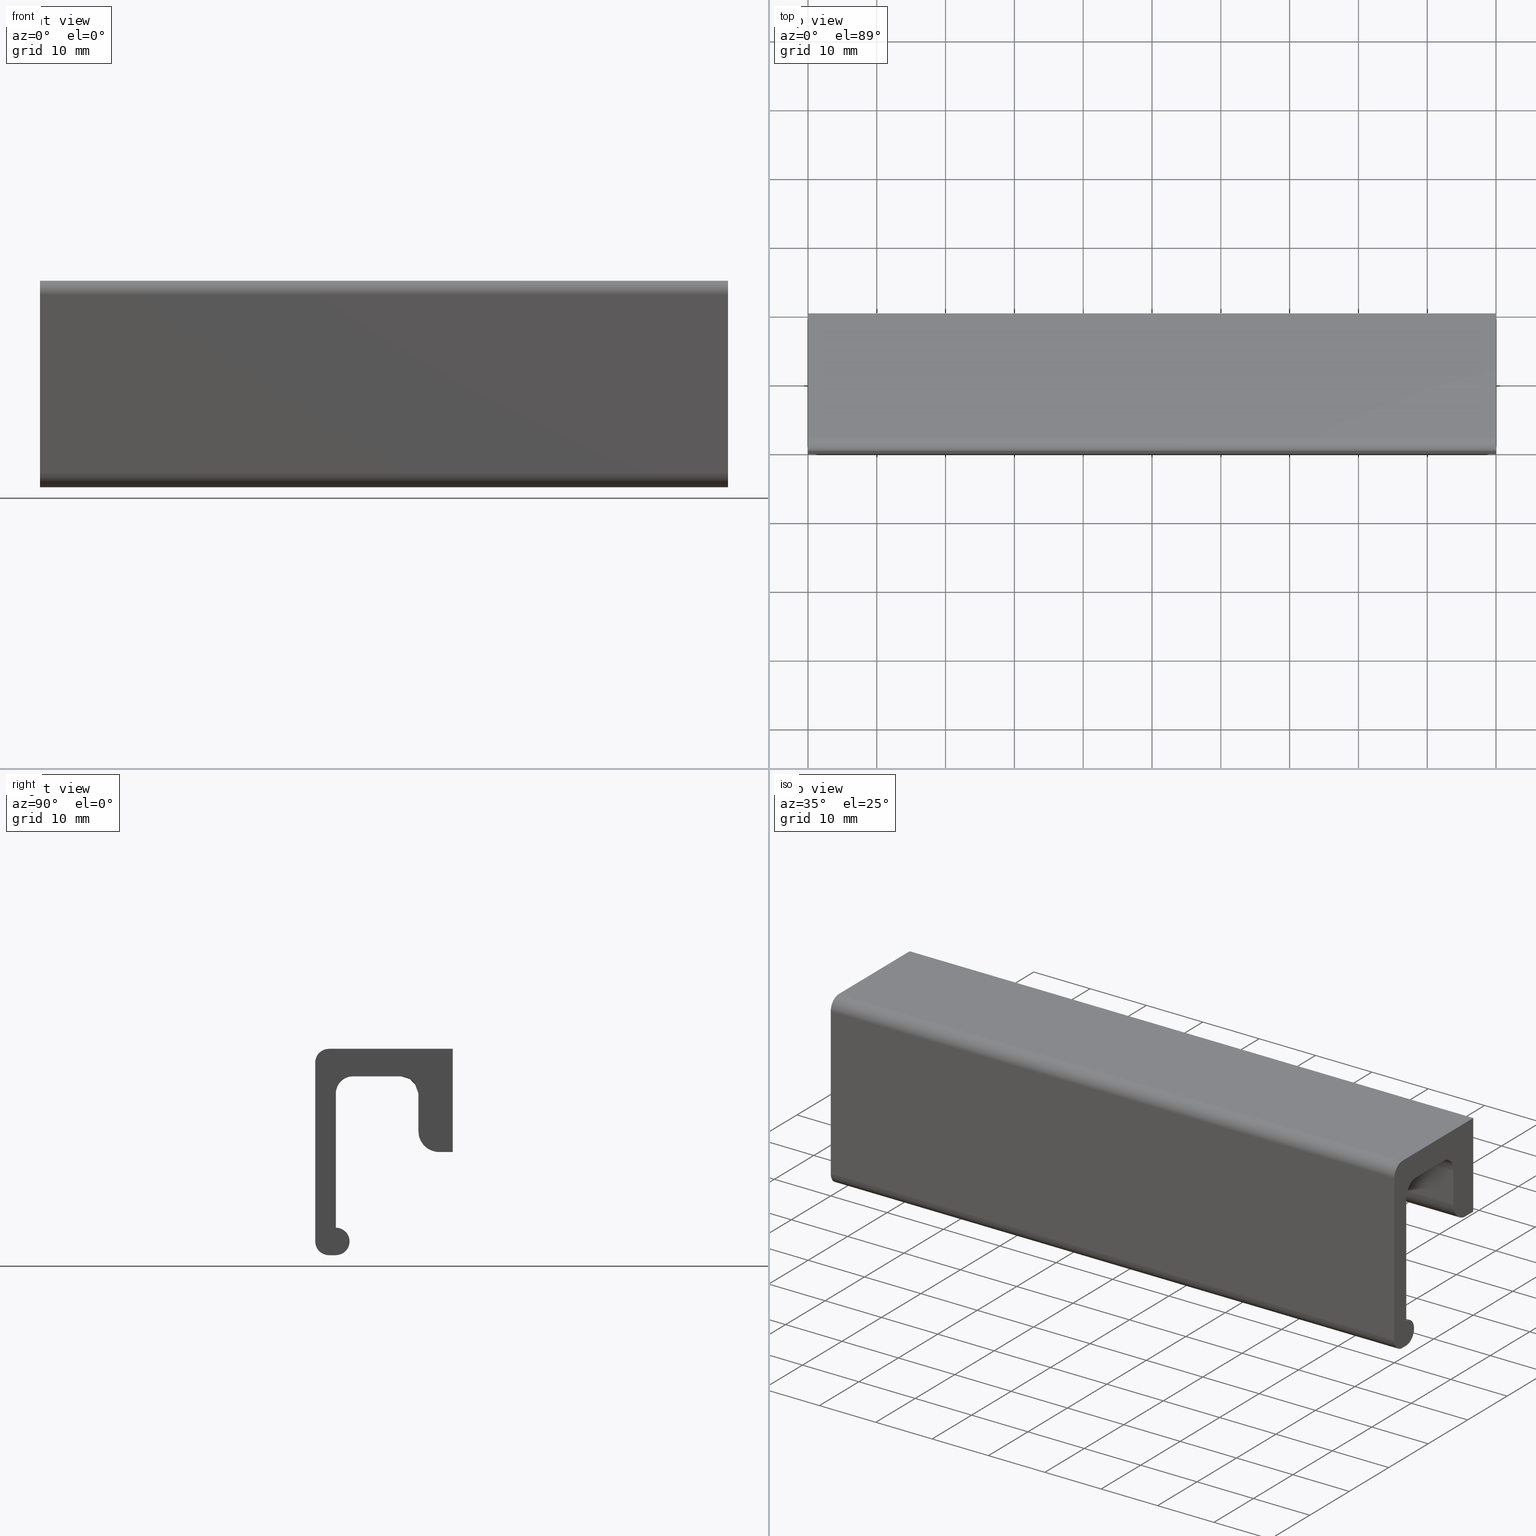
[diagram: canonical four-view strip — front | top / right | iso, engineering-drawing reading convention]
A machine part, canonical four-view strip (front | top / right | iso — engineering-drawing reading convention). The complete STEP part file that produces these views, byte-faithful:
ISO-10303-21;
HEADER;
/****************************************************************
 * Generated by software with PDE/Lib inside                    *
 * PDElib Version 4.4.1-0003, patched  Thursday August 19 11:58 *
 * International Technegroup Inc. (www.iti-oh.com)              *
 ****************************************************************/
FILE_DESCRIPTION((''),'2;1');
FILE_NAME('','2005-10-12T14:42:58',(''),(''),'','CADfix','');
FILE_SCHEMA(('AUTOMOTIVE_DESIGN'));
ENDSEC;
DATA;
#5=APPLICATION_CONTEXT('automotive design');
#6=APPLICATION_PROTOCOL_DEFINITION('Draft International Standard','automotive_design',1998,#5);
#7=PRODUCT_CONTEXT('None',#5,'mechanical');
#8=PRODUCT('pull','','None',(#7));
#9=PRODUCT_RELATED_PRODUCT_CATEGORY('part','description',(#8));
#10=PRODUCT_DEFINITION_FORMATION('None','None',#8);
#11=PRODUCT_DEFINITION_CONTEXT('part definition',#5,'design');
#12=PRODUCT_DEFINITION('None','None',#10,#11);
#18=(NAMED_UNIT(*)PLANE_ANGLE_UNIT()SI_UNIT($,.RADIAN.));
#19=DIMENSIONAL_EXPONENTS(0.0,0.0,0.0,0.0,0.0,0.0,0.0);
#20=PLANE_ANGLE_MEASURE_WITH_UNIT(PLANE_ANGLE_MEASURE(0.017453292500000),#18);
#24=(CONVERSION_BASED_UNIT('DEGREE',#20)NAMED_UNIT(#19)PLANE_ANGLE_UNIT());
#28=(NAMED_UNIT(*)SI_UNIT($,.STERADIAN.)SOLID_ANGLE_UNIT());
#32=(LENGTH_UNIT()NAMED_UNIT(*)SI_UNIT(.MILLI.,.METRE.));
#34=UNCERTAINTY_MEASURE_WITH_UNIT(LENGTH_MEASURE(0.001000000000000),#32,'DISTANCE_ACCURACY_VALUE','');
#36=(GEOMETRIC_REPRESENTATION_CONTEXT(3)GLOBAL_UNCERTAINTY_ASSIGNED_CONTEXT((#34))GLOBAL_UNIT_ASSIGNED_CONTEXT((#24,#28,#32))REPRESENTATION_CONTEXT('None','None'));
#37=AXIS2_PLACEMENT_3D('',#38,#39,#40);
#38=CARTESIAN_POINT('',(0.0,0.0,0.0));
#39=DIRECTION('',(0.0,0.0,1.0));
#40=DIRECTION('',(1.0,0.0,0.0));
#41=ADVANCED_BREP_SHAPE_REPRESENTATION('',(#37,#1043),#36);
#42=PRODUCT_DEFINITION_SHAPE('','',#12);
#43=SHAPE_DEFINITION_REPRESENTATION(#42,#41);
#44=CARTESIAN_POINT('',(82.480665534563826,-5.125000000000124,-9.310320005199573));
#45=CARTESIAN_POINT('',(82.204328145333051,-5.125000000000124,-11.519332076256115));
#46=CARTESIAN_POINT('',(79.978183661254064,-5.125000000000124,-11.499904807660430));
#47=CARTESIAN_POINT('',(77.478278853593636,-5.125000000000124,-11.478088468914493));
#48=CARTESIAN_POINT('',(77.500095192339572,-5.125000000000124,-8.978183661254064));
#49=CARTESIAN_POINT('',(82.480665534563826,0.128125000000003,-9.310320005199573));
#50=CARTESIAN_POINT('',(82.204328145333051,0.128125000000003,-11.519332076256115));
#51=CARTESIAN_POINT('',(79.978183661254064,0.128125000000003,-11.499904807660430));
#52=CARTESIAN_POINT('',(77.478278853593636,0.128125000000003,-11.478088468914493));
#53=CARTESIAN_POINT('',(77.500095192339572,0.128125000000003,-8.978183661254064));
#61=(BOUNDED_SURFACE()B_SPLINE_SURFACE(2,1,((#44,#49),(#45,#50),(#46,#51),(#47,#52),(#48,#53)),.UNSPECIFIED.,.F.,.F.,.U.)B_SPLINE_SURFACE_WITH_KNOTS((3,2,3),(2,2),(0.0,3.810764773832486,7.952900397563448),(0.0,5.253125000000129),.UNSPECIFIED.)GEOMETRIC_REPRESENTATION_ITEM()RATIONAL_B_SPLINE_SURFACE(((0.956886118190660,0.956886118190660),(0.730538238691624,0.730538238691624),(1.0,1.0),(0.707106781186548,0.707106781186548),(1.0,1.0)))REPRESENTATION_ITEM('')SURFACE());
#62=CARTESIAN_POINT('',(82.480665842679002,-5.000000000000120,-9.310317542139508));
#63=VERTEX_POINT('',#62);
#64=CARTESIAN_POINT('',(80.0,-5.000000000000120,-11.500000000000000));
#65=VERTEX_POINT('',#64);
#66=CARTESIAN_POINT('',(82.480665842679002,-5.000000000000120,-9.310317542139508));
#67=CARTESIAN_POINT('',(82.206748708538782,-5.000000000000121,-11.500000000000000));
#68=CARTESIAN_POINT('',(80.0,-5.000000000000120,-11.500000000000000));
#76=(BOUNDED_CURVE()B_SPLINE_CURVE(2,(#66,#67,#68),.UNSPECIFIED.,.F.,.U.)B_SPLINE_CURVE_WITH_KNOTS((3,3),(0.271473761521659,0.500000000000000),.UNSPECIFIED.)CURVE()GEOMETRIC_REPRESENTATION_ITEM()RATIONAL_B_SPLINE_CURVE((0.954005755228834,0.732264857714992,1.0))REPRESENTATION_ITEM(''));
#77=EDGE_CURVE('',#63,#65,#76,.T.);
#78=ORIENTED_EDGE('',*,*,#77,.F.);
#79=CARTESIAN_POINT('',(82.480665534556664,5.801229E-017,-9.310320005256934));
#80=VERTEX_POINT('',#79);
#81=CARTESIAN_POINT('',(82.480665842679002,-5.000000000000120,-9.310317542139508));
#82=CARTESIAN_POINT('',(82.480665534556664,5.801229E-017,-9.310320005256934));
#83=QUASI_UNIFORM_CURVE('',1,(#81,#82),.UNSPECIFIED.,.F.,.U.);
#84=EDGE_CURVE('',#63,#80,#83,.T.);
#85=ORIENTED_EDGE('',*,*,#84,.T.);
#86=CARTESIAN_POINT('',(80.0,0.0,-11.500000000000000));
#87=VERTEX_POINT('',#86);
#88=CARTESIAN_POINT('',(80.0,0.0,-11.500000000000000));
#89=CARTESIAN_POINT('',(82.206746500272715,0.0,-11.499999999999996));
#90=CARTESIAN_POINT('',(82.480665534556678,5.801229E-017,-9.310320005256934));
#98=(BOUNDED_CURVE()B_SPLINE_CURVE(2,(#88,#89,#90),.UNSPECIFIED.,.F.,.U.)B_SPLINE_CURVE_WITH_KNOTS((3,3),(0.500000000000000,0.728526071021500),.UNSPECIFIED.)CURVE()GEOMETRIC_REPRESENTATION_ITEM()RATIONAL_B_SPLINE_CURVE((1.0,0.732265053902885,0.954005430259584))REPRESENTATION_ITEM(''));
#99=EDGE_CURVE('',#87,#80,#98,.T.);
#100=ORIENTED_EDGE('',*,*,#99,.F.);
#101=CARTESIAN_POINT('',(77.500095192344503,8.326673E-017,-8.978183660689510));
#102=VERTEX_POINT('',#101);
#103=CARTESIAN_POINT('',(77.500095192344503,8.326673E-017,-8.978183660689510));
#104=CARTESIAN_POINT('',(77.500000000000000,0.0,-8.989091622383658));
#105=CARTESIAN_POINT('',(77.500000000000000,0.0,-9.0));
#106=CARTESIAN_POINT('',(77.500000000000014,0.0,-11.500000000000000));
#107=CARTESIAN_POINT('',(80.0,0.0,-11.500000000000000));
#115=(BOUNDED_CURVE()B_SPLINE_CURVE(2,(#103,#104,#105,#106,#107),.UNSPECIFIED.,.F.,.U.)B_SPLINE_CURVE_WITH_KNOTS((3,2,3),(0.248460105585456,0.250000000000000,0.500000000000000),.UNSPECIFIED.)CURVE()GEOMETRIC_REPRESENTATION_ITEM()RATIONAL_B_SPLINE_CURVE((0.996414027916289,0.998195901473165,1.0,0.707106781186548,1.0))REPRESENTATION_ITEM(''));
#116=EDGE_CURVE('',#102,#87,#115,.T.);
#117=ORIENTED_EDGE('',*,*,#116,.F.);
#118=CARTESIAN_POINT('',(77.500095192344872,-5.000000000000121,-8.978183660647193));
#119=VERTEX_POINT('',#118);
#120=CARTESIAN_POINT('',(77.500095192344872,-5.000000000000121,-8.978183660647193));
#121=CARTESIAN_POINT('',(77.500095192344503,8.326673E-017,-8.978183660689510));
#122=QUASI_UNIFORM_CURVE('',1,(#120,#121),.UNSPECIFIED.,.F.,.U.);
#123=EDGE_CURVE('',#119,#102,#122,.T.);
#124=ORIENTED_EDGE('',*,*,#123,.F.);
#125=CARTESIAN_POINT('',(80.0,-5.000000000000120,-11.500000000000000));
#126=CARTESIAN_POINT('',(77.500000000000014,-5.000000000000121,-11.500000000000000));
#127=CARTESIAN_POINT('',(77.500000000000000,-5.000000000000120,-9.0));
#128=CARTESIAN_POINT('',(77.500000000000000,-5.000000000000120,-8.989091622341340));
#129=CARTESIAN_POINT('',(77.500095192344872,-5.000000000000121,-8.978183660647193));
#137=(BOUNDED_CURVE()B_SPLINE_CURVE(2,(#125,#126,#127,#128,#129),.UNSPECIFIED.,.F.,.U.)B_SPLINE_CURVE_WITH_KNOTS((3,2,3),(0.500000000000000,0.750000000000000,0.751539894420507),.UNSPECIFIED.)CURVE()GEOMETRIC_REPRESENTATION_ITEM()RATIONAL_B_SPLINE_CURVE((1.0,0.707106781186548,1.0,0.998195901466179,0.996414027902488))REPRESENTATION_ITEM(''));
#138=EDGE_CURVE('',#65,#119,#137,.T.);
#139=ORIENTED_EDGE('',*,*,#138,.F.);
#140=EDGE_LOOP('',(#78,#85,#100,#117,#124,#139));
#141=FACE_OUTER_BOUND('',#140,.T.);
#142=ADVANCED_FACE('',(#141),#61,.F.);
#143=CARTESIAN_POINT('',(77.500095192339572,-5.125000000000124,-8.978183661254064));
#144=CARTESIAN_POINT('',(77.521911531085507,-5.125000000000124,-6.478278853593639));
#145=CARTESIAN_POINT('',(80.021816338745936,-5.125000000000124,-6.500095192339573));
#146=CARTESIAN_POINT('',(82.521721146406364,-5.125000000000124,-6.521911531085508));
#147=CARTESIAN_POINT('',(82.499904807660428,-5.125000000000124,-9.021816338745936));
#148=CARTESIAN_POINT('',(82.498641078150669,-5.125000000000124,-9.166625397395436));
#149=CARTESIAN_POINT('',(82.480665534563826,-5.125000000000124,-9.310320005199573));
#150=CARTESIAN_POINT('',(77.500095192339572,0.128125000000003,-8.978183661254064));
#151=CARTESIAN_POINT('',(77.521911531085507,0.128125000000003,-6.478278853593639));
#152=CARTESIAN_POINT('',(80.021816338745936,0.128125000000003,-6.500095192339573));
#153=CARTESIAN_POINT('',(82.521721146406364,0.128125000000003,-6.521911531085508));
#154=CARTESIAN_POINT('',(82.499904807660428,0.128125000000003,-9.021816338745936));
#155=CARTESIAN_POINT('',(82.498641078150669,0.128125000000003,-9.166625397395436));
#156=CARTESIAN_POINT('',(82.480665534563826,0.128125000000003,-9.310320005199573));
#164=(BOUNDED_SURFACE()B_SPLINE_SURFACE(2,1,((#143,#150),(#144,#151),(#145,#152),(#146,#153),(#147,#154),(#148,#155),(#149,#156)),.UNSPECIFIED.,.F.,.F.,.U.)B_SPLINE_SURFACE_WITH_KNOTS((3,2,2,3),(2,2),(0.0,4.142135623730963,8.284271247461925,8.615642097360404),(0.0,5.253125000000129),.UNSPECIFIED.)GEOMETRIC_REPRESENTATION_ITEM()RATIONAL_B_SPLINE_SURFACE(((1.0,1.0),(0.707106781186548,0.707106781186548),(1.0,1.0),(0.707106781186548,0.707106781186548),(1.0,1.0),(0.976568542494924,0.976568542494924),(0.956886118190660,0.956886118190660)))REPRESENTATION_ITEM('')SURFACE());
#165=CARTESIAN_POINT('',(80.0,-5.000000000000110,-6.500000000000000));
#166=VERTEX_POINT('',#165);
#167=CARTESIAN_POINT('',(80.0,-5.000000000000120,-6.499999999999999));
#168=CARTESIAN_POINT('',(82.500000000000000,-5.000000000000121,-6.499999999999999));
#169=CARTESIAN_POINT('',(82.500000000000000,-5.000000000000120,-9.0));
#170=CARTESIAN_POINT('',(82.500000000000000,-5.000000000000120,-9.155761072887330));
#171=CARTESIAN_POINT('',(82.480665842679002,-5.000000000000120,-9.310317542139508));
#179=(BOUNDED_CURVE()B_SPLINE_CURVE(2,(#167,#168,#169,#170,#171),.UNSPECIFIED.,.F.,.U.)B_SPLINE_CURVE_WITH_KNOTS((3,2,3),(0.0,0.250000000000000,0.271473761521659),.UNSPECIFIED.)CURVE()GEOMETRIC_REPRESENTATION_ITEM()RATIONAL_B_SPLINE_CURVE((1.0,0.707106781186548,1.0,0.974841923471555,0.954005755228834))REPRESENTATION_ITEM(''));
#180=EDGE_CURVE('',#166,#63,#179,.T.);
#181=ORIENTED_EDGE('',*,*,#180,.F.);
#182=CARTESIAN_POINT('',(77.500095192344872,-5.000000000000122,-8.978183660647193));
#183=CARTESIAN_POINT('',(77.521721974715845,-5.000000000000120,-6.499999999999999));
#184=CARTESIAN_POINT('',(80.0,-5.000000000000120,-6.499999999999999));
#192=(BOUNDED_CURVE()B_SPLINE_CURVE(2,(#182,#183,#184),.UNSPECIFIED.,.F.,.U.)B_SPLINE_CURVE_WITH_KNOTS((3,3),(0.751539894420507,1.0),.UNSPECIFIED.)CURVE()GEOMETRIC_REPRESENTATION_ITEM()RATIONAL_B_SPLINE_CURVE((0.996414027902489,0.708910879720368,1.0))REPRESENTATION_ITEM(''));
#193=EDGE_CURVE('',#119,#166,#192,.T.);
#194=ORIENTED_EDGE('',*,*,#193,.F.);
#195=ORIENTED_EDGE('',*,*,#123,.T.);
#196=CARTESIAN_POINT('',(80.0,0.0,-6.499999999999999));
#197=VERTEX_POINT('',#196);
#198=CARTESIAN_POINT('',(80.0,0.0,-6.499999999999999));
#199=CARTESIAN_POINT('',(77.521721974631930,0.0,-6.499999999999998));
#200=CARTESIAN_POINT('',(77.500095192344503,8.326673E-017,-8.978183660689510));
#208=(BOUNDED_CURVE()B_SPLINE_CURVE(2,(#198,#199,#200),.UNSPECIFIED.,.F.,.U.)B_SPLINE_CURVE_WITH_KNOTS((3,3),(0.0,0.248460105585456),.UNSPECIFIED.)CURVE()GEOMETRIC_REPRESENTATION_ITEM()RATIONAL_B_SPLINE_CURVE((1.0,0.708910879713382,0.996414027916289))REPRESENTATION_ITEM(''));
#209=EDGE_CURVE('',#197,#102,#208,.T.);
#210=ORIENTED_EDGE('',*,*,#209,.F.);
#211=CARTESIAN_POINT('',(82.480665534556678,5.801229E-017,-9.310320005256934));
#212=CARTESIAN_POINT('',(82.499999999999986,0.0,-9.155762318891766));
#213=CARTESIAN_POINT('',(82.500000000000000,0.0,-9.0));
#214=CARTESIAN_POINT('',(82.500000000000000,0.0,-6.499999999999999));
#215=CARTESIAN_POINT('',(80.0,0.0,-6.499999999999999));
#223=(BOUNDED_CURVE()B_SPLINE_CURVE(2,(#211,#212,#213,#214,#215),.UNSPECIFIED.,.F.,.U.)B_SPLINE_CURVE_WITH_KNOTS((3,2,3),(0.728526071021500,0.750000000000000,1.0),.UNSPECIFIED.)CURVE()GEOMETRIC_REPRESENTATION_ITEM()RATIONAL_B_SPLINE_CURVE((0.954005430259584,0.974841727283662,1.0,0.707106781186548,1.0))REPRESENTATION_ITEM(''));
#224=EDGE_CURVE('',#80,#197,#223,.T.);
#225=ORIENTED_EDGE('',*,*,#224,.F.);
#226=ORIENTED_EDGE('',*,*,#84,.F.);
#227=EDGE_LOOP('',(#181,#194,#195,#210,#225,#226));
#228=FACE_OUTER_BOUND('',#227,.T.);
#229=ADVANCED_FACE('',(#228),#164,.F.);
#230=CARTESIAN_POINT('',(22.480665534563855,-5.125000000000124,-9.310320005199573));
#231=CARTESIAN_POINT('',(22.204328145333054,-5.125000000000124,-11.519332076256115));
#232=CARTESIAN_POINT('',(19.978183661254061,-5.125000000000124,-11.499904807660430));
#233=CARTESIAN_POINT('',(17.478278853593640,-5.125000000000124,-11.478088468914493));
#234=CARTESIAN_POINT('',(17.500095192339568,-5.125000000000124,-8.978183661254064));
#235=CARTESIAN_POINT('',(22.480665534563855,0.128125000000003,-9.310320005199573));
#236=CARTESIAN_POINT('',(22.204328145333054,0.128125000000003,-11.519332076256115));
#237=CARTESIAN_POINT('',(19.978183661254061,0.128125000000003,-11.499904807660430));
#238=CARTESIAN_POINT('',(17.478278853593640,0.128125000000003,-11.478088468914493));
#239=CARTESIAN_POINT('',(17.500095192339568,0.128125000000003,-8.978183661254064));
#247=(BOUNDED_SURFACE()B_SPLINE_SURFACE(2,1,((#230,#235),(#231,#236),(#232,#237),(#233,#238),(#234,#239)),.UNSPECIFIED.,.F.,.F.,.U.)B_SPLINE_SURFACE_WITH_KNOTS((3,2,3),(2,2),(0.0,3.810764773832474,7.952900397563425),(0.0,5.253125000000129),.UNSPECIFIED.)GEOMETRIC_REPRESENTATION_ITEM()RATIONAL_B_SPLINE_SURFACE(((0.956886118190660,0.956886118190660),(0.730538238691624,0.730538238691624),(1.0,1.0),(0.707106781186548,0.707106781186548),(1.0,1.0)))REPRESENTATION_ITEM('')SURFACE());
#248=CARTESIAN_POINT('',(22.480665842678999,-5.000000000000120,-9.310317542139508));
#249=VERTEX_POINT('',#248);
#250=CARTESIAN_POINT('',(20.0,-5.000000000000120,-11.500000000000000));
#251=VERTEX_POINT('',#250);
#252=CARTESIAN_POINT('',(22.480665842679002,-5.000000000000122,-9.310317542139508));
#253=CARTESIAN_POINT('',(22.206748708538779,-5.000000000000118,-11.499999999999998));
#254=CARTESIAN_POINT('',(20.0,-5.000000000000120,-11.500000000000000));
#262=(BOUNDED_CURVE()B_SPLINE_CURVE(2,(#252,#253,#254),.UNSPECIFIED.,.F.,.U.)B_SPLINE_CURVE_WITH_KNOTS((3,3),(0.271473761521659,0.500000000000000),.UNSPECIFIED.)CURVE()GEOMETRIC_REPRESENTATION_ITEM()RATIONAL_B_SPLINE_CURVE((0.954005755228834,0.732264857714992,1.0))REPRESENTATION_ITEM(''));
#263=EDGE_CURVE('',#249,#251,#262,.T.);
#264=ORIENTED_EDGE('',*,*,#263,.F.);
#265=CARTESIAN_POINT('',(22.480665534556671,5.801229E-017,-9.310320005256934));
#266=VERTEX_POINT('',#265);
#267=CARTESIAN_POINT('',(22.480665842678999,-5.000000000000120,-9.310317542139508));
#268=CARTESIAN_POINT('',(22.480665534556671,5.801229E-017,-9.310320005256934));
#269=QUASI_UNIFORM_CURVE('',1,(#267,#268),.UNSPECIFIED.,.F.,.U.);
#270=EDGE_CURVE('',#249,#266,#269,.T.);
#271=ORIENTED_EDGE('',*,*,#270,.T.);
#272=CARTESIAN_POINT('',(20.0,0.0,-11.500000000000000));
#273=VERTEX_POINT('',#272);
#274=CARTESIAN_POINT('',(20.0,0.0,-11.500000000000000));
#275=CARTESIAN_POINT('',(22.206746500272718,0.0,-11.499999999999996));
#276=CARTESIAN_POINT('',(22.480665534556675,5.801229E-017,-9.310320005256934));
#284=(BOUNDED_CURVE()B_SPLINE_CURVE(2,(#274,#275,#276),.UNSPECIFIED.,.F.,.U.)B_SPLINE_CURVE_WITH_KNOTS((3,3),(0.500000000000000,0.728526071021500),.UNSPECIFIED.)CURVE()GEOMETRIC_REPRESENTATION_ITEM()RATIONAL_B_SPLINE_CURVE((1.0,0.732265053902885,0.954005430259584))REPRESENTATION_ITEM(''));
#285=EDGE_CURVE('',#273,#266,#284,.T.);
#286=ORIENTED_EDGE('',*,*,#285,.F.);
#287=CARTESIAN_POINT('',(17.500095192344499,8.326673E-017,-8.978183660689510));
#288=VERTEX_POINT('',#287);
#289=CARTESIAN_POINT('',(17.500095192344499,8.326673E-017,-8.978183660689510));
#290=CARTESIAN_POINT('',(17.499999999999996,0.0,-8.989091622383656));
#291=CARTESIAN_POINT('',(17.500000000000000,0.0,-9.0));
#292=CARTESIAN_POINT('',(17.499999999999996,0.0,-11.500000000000000));
#293=CARTESIAN_POINT('',(20.0,0.0,-11.500000000000000));
#301=(BOUNDED_CURVE()B_SPLINE_CURVE(2,(#289,#290,#291,#292,#293),.UNSPECIFIED.,.F.,.U.)B_SPLINE_CURVE_WITH_KNOTS((3,2,3),(0.248460105585456,0.250000000000000,0.500000000000000),.UNSPECIFIED.)CURVE()GEOMETRIC_REPRESENTATION_ITEM()RATIONAL_B_SPLINE_CURVE((0.996414027916289,0.998195901473165,1.0,0.707106781186548,1.0))REPRESENTATION_ITEM(''));
#302=EDGE_CURVE('',#288,#273,#301,.T.);
#303=ORIENTED_EDGE('',*,*,#302,.F.);
#304=CARTESIAN_POINT('',(17.500095192344869,-5.000000000000121,-8.978183660647193));
#305=VERTEX_POINT('',#304);
#306=CARTESIAN_POINT('',(17.500095192344869,-5.000000000000121,-8.978183660647193));
#307=CARTESIAN_POINT('',(17.500095192344499,8.326673E-017,-8.978183660689510));
#308=QUASI_UNIFORM_CURVE('',1,(#306,#307),.UNSPECIFIED.,.F.,.U.);
#309=EDGE_CURVE('',#305,#288,#308,.T.);
#310=ORIENTED_EDGE('',*,*,#309,.F.);
#311=CARTESIAN_POINT('',(20.0,-5.000000000000120,-11.500000000000000));
#312=CARTESIAN_POINT('',(17.499999999999996,-5.000000000000121,-11.500000000000000));
#313=CARTESIAN_POINT('',(17.500000000000000,-5.000000000000120,-9.0));
#314=CARTESIAN_POINT('',(17.499999999999996,-5.000000000000120,-8.989091622341340));
#315=CARTESIAN_POINT('',(17.500095192344865,-5.000000000000121,-8.978183660647193));
#323=(BOUNDED_CURVE()B_SPLINE_CURVE(2,(#311,#312,#313,#314,#315),.UNSPECIFIED.,.F.,.U.)B_SPLINE_CURVE_WITH_KNOTS((3,2,3),(0.500000000000000,0.750000000000000,0.751539894420507),.UNSPECIFIED.)CURVE()GEOMETRIC_REPRESENTATION_ITEM()RATIONAL_B_SPLINE_CURVE((1.0,0.707106781186548,1.0,0.998195901466179,0.996414027902488))REPRESENTATION_ITEM(''));
#324=EDGE_CURVE('',#251,#305,#323,.T.);
#325=ORIENTED_EDGE('',*,*,#324,.F.);
#326=EDGE_LOOP('',(#264,#271,#286,#303,#310,#325));
#327=FACE_OUTER_BOUND('',#326,.T.);
#328=ADVANCED_FACE('',(#327),#247,.F.);
#329=CARTESIAN_POINT('',(17.500095192339568,-5.125000000000124,-8.978183661254064));
#330=CARTESIAN_POINT('',(17.521911531085514,-5.125000000000124,-6.478278853593639));
#331=CARTESIAN_POINT('',(20.021816338745939,-5.125000000000124,-6.500095192339573));
#332=CARTESIAN_POINT('',(22.521721146406371,-5.125000000000124,-6.521911531085508));
#333=CARTESIAN_POINT('',(22.499904807660432,-5.125000000000124,-9.021816338745936));
#334=CARTESIAN_POINT('',(22.498641078150690,-5.125000000000124,-9.166625397395436));
#335=CARTESIAN_POINT('',(22.480665534563855,-5.125000000000124,-9.310320005199573));
#336=CARTESIAN_POINT('',(17.500095192339568,0.128125000000003,-8.978183661254064));
#337=CARTESIAN_POINT('',(17.521911531085514,0.128125000000003,-6.478278853593639));
#338=CARTESIAN_POINT('',(20.021816338745939,0.128125000000003,-6.500095192339573));
#339=CARTESIAN_POINT('',(22.521721146406371,0.128125000000003,-6.521911531085508));
#340=CARTESIAN_POINT('',(22.499904807660432,0.128125000000003,-9.021816338745936));
#341=CARTESIAN_POINT('',(22.498641078150690,0.128125000000003,-9.166625397395436));
#342=CARTESIAN_POINT('',(22.480665534563855,0.128125000000003,-9.310320005199573));
#350=(BOUNDED_SURFACE()B_SPLINE_SURFACE(2,1,((#329,#336),(#330,#337),(#331,#338),(#332,#339),(#333,#340),(#334,#341),(#335,#342)),.UNSPECIFIED.,.F.,.F.,.U.)B_SPLINE_SURFACE_WITH_KNOTS((3,2,2,3),(2,2),(0.0,4.142135623730951,8.284271247461902,8.615642097360379),(0.0,5.253125000000129),.UNSPECIFIED.)GEOMETRIC_REPRESENTATION_ITEM()RATIONAL_B_SPLINE_SURFACE(((1.0,1.0),(0.707106781186548,0.707106781186548),(1.0,1.0),(0.707106781186548,0.707106781186548),(1.0,1.0),(0.976568542494924,0.976568542494924),(0.956886118190660,0.956886118190660)))REPRESENTATION_ITEM('')SURFACE());
#351=CARTESIAN_POINT('',(20.0,-5.000000000000110,-6.500000000000000));
#352=VERTEX_POINT('',#351);
#353=CARTESIAN_POINT('',(20.0,-5.000000000000120,-6.499999999999999));
#354=CARTESIAN_POINT('',(22.500000000000000,-5.000000000000121,-6.499999999999999));
#355=CARTESIAN_POINT('',(22.500000000000000,-5.000000000000120,-9.0));
#356=CARTESIAN_POINT('',(22.499999999999996,-5.000000000000120,-9.155761072887330));
#357=CARTESIAN_POINT('',(22.480665842679002,-5.000000000000122,-9.310317542139508));
#365=(BOUNDED_CURVE()B_SPLINE_CURVE(2,(#353,#354,#355,#356,#357),.UNSPECIFIED.,.F.,.U.)B_SPLINE_CURVE_WITH_KNOTS((3,2,3),(0.0,0.250000000000000,0.271473761521659),.UNSPECIFIED.)CURVE()GEOMETRIC_REPRESENTATION_ITEM()RATIONAL_B_SPLINE_CURVE((1.0,0.707106781186548,1.0,0.974841923471555,0.954005755228834))REPRESENTATION_ITEM(''));
#366=EDGE_CURVE('',#352,#249,#365,.T.);
#367=ORIENTED_EDGE('',*,*,#366,.F.);
#368=CARTESIAN_POINT('',(17.500095192344862,-5.000000000000122,-8.978183660647193));
#369=CARTESIAN_POINT('',(17.521721974715845,-5.000000000000120,-6.499999999999999));
#370=CARTESIAN_POINT('',(20.0,-5.000000000000120,-6.499999999999999));
#378=(BOUNDED_CURVE()B_SPLINE_CURVE(2,(#368,#369,#370),.UNSPECIFIED.,.F.,.U.)B_SPLINE_CURVE_WITH_KNOTS((3,3),(0.751539894420507,1.0),.UNSPECIFIED.)CURVE()GEOMETRIC_REPRESENTATION_ITEM()RATIONAL_B_SPLINE_CURVE((0.996414027902489,0.708910879720368,1.0))REPRESENTATION_ITEM(''));
#379=EDGE_CURVE('',#305,#352,#378,.T.);
#380=ORIENTED_EDGE('',*,*,#379,.F.);
#381=ORIENTED_EDGE('',*,*,#309,.T.);
#382=CARTESIAN_POINT('',(20.0,0.0,-6.499999999999999));
#383=VERTEX_POINT('',#382);
#384=CARTESIAN_POINT('',(20.0,0.0,-6.499999999999999));
#385=CARTESIAN_POINT('',(17.521721974631951,0.0,-6.499999999999998));
#386=CARTESIAN_POINT('',(17.500095192344503,8.326673E-017,-8.978183660689510));
#394=(BOUNDED_CURVE()B_SPLINE_CURVE(2,(#384,#385,#386),.UNSPECIFIED.,.F.,.U.)B_SPLINE_CURVE_WITH_KNOTS((3,3),(0.0,0.248460105585456),.UNSPECIFIED.)CURVE()GEOMETRIC_REPRESENTATION_ITEM()RATIONAL_B_SPLINE_CURVE((1.0,0.708910879713382,0.996414027916288))REPRESENTATION_ITEM(''));
#395=EDGE_CURVE('',#383,#288,#394,.T.);
#396=ORIENTED_EDGE('',*,*,#395,.F.);
#397=CARTESIAN_POINT('',(22.480665534556675,5.801229E-017,-9.310320005256934));
#398=CARTESIAN_POINT('',(22.499999999999993,0.0,-9.155762318891766));
#399=CARTESIAN_POINT('',(22.500000000000000,0.0,-9.0));
#400=CARTESIAN_POINT('',(22.500000000000000,0.0,-6.499999999999999));
#401=CARTESIAN_POINT('',(20.0,0.0,-6.499999999999999));
#409=(BOUNDED_CURVE()B_SPLINE_CURVE(2,(#397,#398,#399,#400,#401),.UNSPECIFIED.,.F.,.U.)B_SPLINE_CURVE_WITH_KNOTS((3,2,3),(0.728526071021500,0.750000000000000,1.0),.UNSPECIFIED.)CURVE()GEOMETRIC_REPRESENTATION_ITEM()RATIONAL_B_SPLINE_CURVE((0.954005430259584,0.974841727283662,1.0,0.707106781186548,1.0))REPRESENTATION_ITEM(''));
#410=EDGE_CURVE('',#266,#383,#409,.T.);
#411=ORIENTED_EDGE('',*,*,#410,.F.);
#412=ORIENTED_EDGE('',*,*,#270,.F.);
#413=EDGE_LOOP('',(#367,#380,#381,#396,#411,#412));
#414=FACE_OUTER_BOUND('',#413,.T.);
#415=ADVANCED_FACE('',(#414),#350,.F.);
#416=CARTESIAN_POINT('',(-4.994999806180585,-5.000000000000110,-6.225275010660067));
#417=CARTESIAN_POINT('',(-4.994999806180585,-5.000000000000110,-12.274725136861431));
#418=CARTESIAN_POINT('',(104.995002488389600,-5.000000000000110,-6.225275010660067));
#419=CARTESIAN_POINT('',(104.995002488389600,-5.000000000000110,-12.274725136861431));
#420=B_SPLINE_SURFACE_WITH_KNOTS('',1,1,((#416,#418),(#417,#419)),.UNSPECIFIED.,.F.,.F.,.U.,(2,2),(2,2),(0.0,6.049450126201364),(0.0,109.990002294570200),.UNSPECIFIED.);
#421=CARTESIAN_POINT('',(100.0,-5.000000000000110,-6.500000000000000));
#422=VERTEX_POINT('',#421);
#423=CARTESIAN_POINT('',(100.0,-5.000000000000110,-6.500000000000000));
#424=CARTESIAN_POINT('',(80.0,-5.000000000000110,-6.500000000000000));
#425=QUASI_UNIFORM_CURVE('',1,(#423,#424),.UNSPECIFIED.,.F.,.U.);
#426=EDGE_CURVE('',#422,#166,#425,.T.);
#427=ORIENTED_EDGE('',*,*,#426,.T.);
#428=ORIENTED_EDGE('',*,*,#180,.T.);
#429=ORIENTED_EDGE('',*,*,#77,.T.);
#430=ORIENTED_EDGE('',*,*,#138,.T.);
#431=ORIENTED_EDGE('',*,*,#193,.T.);
#432=CARTESIAN_POINT('',(80.0,-5.000000000000110,-6.500000000000000));
#433=CARTESIAN_POINT('',(20.0,-5.000000000000110,-6.500000000000000));
#434=QUASI_UNIFORM_CURVE('',1,(#432,#433),.UNSPECIFIED.,.F.,.U.);
#435=EDGE_CURVE('',#166,#352,#434,.T.);
#436=ORIENTED_EDGE('',*,*,#435,.T.);
#437=ORIENTED_EDGE('',*,*,#366,.T.);
#438=ORIENTED_EDGE('',*,*,#263,.T.);
#439=ORIENTED_EDGE('',*,*,#324,.T.);
#440=ORIENTED_EDGE('',*,*,#379,.T.);
#441=CARTESIAN_POINT('',(0.0,-5.000000000000110,-6.500000000000000));
#442=VERTEX_POINT('',#441);
#443=CARTESIAN_POINT('',(20.0,-5.000000000000110,-6.500000000000000));
#444=CARTESIAN_POINT('',(0.0,-5.000000000000110,-6.500000000000000));
#445=QUASI_UNIFORM_CURVE('',1,(#443,#444),.UNSPECIFIED.,.F.,.U.);
#446=EDGE_CURVE('',#352,#442,#445,.T.);
#447=ORIENTED_EDGE('',*,*,#446,.T.);
#448=CARTESIAN_POINT('',(0.0,-5.0,-12.0));
#449=VERTEX_POINT('',#448);
#450=CARTESIAN_POINT('',(0.0,-5.0,-12.0));
#451=CARTESIAN_POINT('',(0.0,-5.000000000000110,-6.500000000000000));
#452=QUASI_UNIFORM_CURVE('',1,(#450,#451),.UNSPECIFIED.,.F.,.U.);
#453=EDGE_CURVE('',#449,#442,#452,.T.);
#454=ORIENTED_EDGE('',*,*,#453,.F.);
#455=CARTESIAN_POINT('',(100.0,-5.0,-12.0));
#456=VERTEX_POINT('',#455);
#457=CARTESIAN_POINT('',(100.0,-5.0,-12.0));
#458=CARTESIAN_POINT('',(0.0,-5.0,-12.0));
#459=QUASI_UNIFORM_CURVE('',1,(#457,#458),.UNSPECIFIED.,.F.,.U.);
#460=EDGE_CURVE('',#456,#449,#459,.T.);
#461=ORIENTED_EDGE('',*,*,#460,.F.);
#462=CARTESIAN_POINT('',(100.0,-5.0,-12.0));
#463=CARTESIAN_POINT('',(100.0,-5.000000000000110,-6.500000000000000));
#464=QUASI_UNIFORM_CURVE('',1,(#462,#463),.UNSPECIFIED.,.F.,.U.);
#465=EDGE_CURVE('',#456,#422,#464,.T.);
#466=ORIENTED_EDGE('',*,*,#465,.T.);
#467=EDGE_LOOP('',(#427,#428,#429,#430,#431,#436,#437,#438,#439,#440,#447,#454,#461,#466));
#468=FACE_OUTER_BOUND('',#467,.T.);
#469=ADVANCED_FACE('',(#468),#420,.T.);
#470=CARTESIAN_POINT('',(-7.105427E-015,-20.998999961236120,1.498499941854179));
#471=CARTESIAN_POINT('',(-7.105427E-015,0.999000497677920,1.498499941854179));
#472=CARTESIAN_POINT('',(-7.105427E-015,-20.998999961236120,-31.498500746516889));
#473=CARTESIAN_POINT('',(-7.105427E-015,0.999000497677920,-31.498500746516889));
#474=B_SPLINE_SURFACE_WITH_KNOTS('',1,1,((#470,#472),(#471,#473)),.UNSPECIFIED.,.F.,.F.,.U.,(2,2),(2,2),(0.0,21.998000458914039),(0.0,32.997000688371067),.UNSPECIFIED.);
#475=CARTESIAN_POINT('',(0.0,0.0,0.0));
#476=VERTEX_POINT('',#475);
#477=CARTESIAN_POINT('',(0.0,0.0,-15.0));
#478=VERTEX_POINT('',#477);
#479=CARTESIAN_POINT('',(0.0,0.0,0.0));
#480=CARTESIAN_POINT('',(0.0,0.0,-15.0));
#481=QUASI_UNIFORM_CURVE('',1,(#479,#480),.UNSPECIFIED.,.F.,.U.);
#482=EDGE_CURVE('',#476,#478,#481,.T.);
#483=ORIENTED_EDGE('',*,*,#482,.T.);
#484=CARTESIAN_POINT('',(0.0,-2.0,-15.0));
#485=VERTEX_POINT('',#484);
#486=CARTESIAN_POINT('',(0.0,0.0,-15.0));
#487=CARTESIAN_POINT('',(0.0,-2.0,-15.0));
#488=QUASI_UNIFORM_CURVE('',1,(#486,#487),.UNSPECIFIED.,.F.,.U.);
#489=EDGE_CURVE('',#478,#485,#488,.T.);
#490=ORIENTED_EDGE('',*,*,#489,.T.);
#491=CARTESIAN_POINT('',(0.0,-5.0,-12.0));
#492=CARTESIAN_POINT('',(0.0,-5.000000000000001,-14.999999999999995));
#493=CARTESIAN_POINT('',(0.0,-2.0,-15.0));
#501=(BOUNDED_CURVE()B_SPLINE_CURVE(2,(#491,#492,#493),.UNSPECIFIED.,.F.,.U.)CURVE()GEOMETRIC_REPRESENTATION_ITEM()QUASI_UNIFORM_CURVE()RATIONAL_B_SPLINE_CURVE((1.0,0.707106781186548,1.0))REPRESENTATION_ITEM(''));
#502=EDGE_CURVE('',#449,#485,#501,.T.);
#503=ORIENTED_EDGE('',*,*,#502,.F.);
#504=ORIENTED_EDGE('',*,*,#453,.T.);
#505=CARTESIAN_POINT('',(0.0,-7.500000000000110,-4.0));
#506=VERTEX_POINT('',#505);
#507=CARTESIAN_POINT('',(0.0,-5.000000000000110,-6.500000000000000));
#508=CARTESIAN_POINT('',(0.0,-5.000000000000110,-4.000000000000000));
#509=CARTESIAN_POINT('',(0.0,-7.500000000000110,-4.0));
#517=(BOUNDED_CURVE()B_SPLINE_CURVE(2,(#507,#508,#509),.UNSPECIFIED.,.F.,.U.)CURVE()GEOMETRIC_REPRESENTATION_ITEM()QUASI_UNIFORM_CURVE()RATIONAL_B_SPLINE_CURVE((1.0,0.707106781186548,1.0))REPRESENTATION_ITEM(''));
#518=EDGE_CURVE('',#442,#506,#517,.T.);
#519=ORIENTED_EDGE('',*,*,#518,.T.);
#520=CARTESIAN_POINT('',(0.0,-14.500000000000000,-4.000000000000085));
#521=VERTEX_POINT('',#520);
#522=CARTESIAN_POINT('',(0.0,-7.500000000000110,-4.0));
#523=CARTESIAN_POINT('',(0.0,-14.500000000000000,-4.000000000000085));
#524=QUASI_UNIFORM_CURVE('',1,(#522,#523),.UNSPECIFIED.,.F.,.U.);
#525=EDGE_CURVE('',#506,#521,#524,.T.);
#526=ORIENTED_EDGE('',*,*,#525,.T.);
#527=CARTESIAN_POINT('',(0.0,-17.0,-6.500000000000000));
#528=VERTEX_POINT('',#527);
#529=CARTESIAN_POINT('',(0.0,-14.500000000000000,-4.000000000000085));
#530=CARTESIAN_POINT('',(0.0,-17.000000000000004,-4.000000000000000));
#531=CARTESIAN_POINT('',(0.0,-17.0,-6.500000000000000));
#539=(BOUNDED_CURVE()B_SPLINE_CURVE(2,(#529,#530,#531),.UNSPECIFIED.,.F.,.U.)CURVE()GEOMETRIC_REPRESENTATION_ITEM()QUASI_UNIFORM_CURVE()RATIONAL_B_SPLINE_CURVE((1.0,0.707106781186548,1.0))REPRESENTATION_ITEM(''));
#540=EDGE_CURVE('',#521,#528,#539,.T.);
#541=ORIENTED_EDGE('',*,*,#540,.T.);
#542=CARTESIAN_POINT('',(0.0,-17.000000000000249,-26.0));
#543=VERTEX_POINT('',#542);
#544=CARTESIAN_POINT('',(0.0,-17.0,-6.500000000000000));
#545=CARTESIAN_POINT('',(0.0,-17.000000000000249,-26.0));
#546=QUASI_UNIFORM_CURVE('',1,(#544,#545),.UNSPECIFIED.,.F.,.U.);
#547=EDGE_CURVE('',#528,#543,#546,.T.);
#548=ORIENTED_EDGE('',*,*,#547,.T.);
#549=CARTESIAN_POINT('',(0.0,-17.000000000000249,-30.0));
#550=VERTEX_POINT('',#549);
#551=CARTESIAN_POINT('',(0.0,-17.000000000000249,-30.0));
#552=CARTESIAN_POINT('',(0.0,-15.000000000000249,-30.000000000000004));
#553=CARTESIAN_POINT('',(0.0,-15.000000000000250,-28.0));
#554=CARTESIAN_POINT('',(0.0,-15.000000000000249,-26.000000000000004));
#555=CARTESIAN_POINT('',(0.0,-17.000000000000249,-26.0));
#563=(BOUNDED_CURVE()B_SPLINE_CURVE(2,(#551,#552,#553,#554,#555),.UNSPECIFIED.,.F.,.U.)B_SPLINE_CURVE_WITH_KNOTS((3,2,3),(0.0,0.500000000000000,1.0),.UNSPECIFIED.)CURVE()GEOMETRIC_REPRESENTATION_ITEM()RATIONAL_B_SPLINE_CURVE((1.0,0.707106781186548,1.0,0.707106781186548,1.0))REPRESENTATION_ITEM(''));
#564=EDGE_CURVE('',#550,#543,#563,.T.);
#565=ORIENTED_EDGE('',*,*,#564,.F.);
#566=CARTESIAN_POINT('',(0.0,-18.0,-30.0));
#567=VERTEX_POINT('',#566);
#568=CARTESIAN_POINT('',(0.0,-17.000000000000249,-30.0));
#569=CARTESIAN_POINT('',(0.0,-18.0,-30.0));
#570=QUASI_UNIFORM_CURVE('',1,(#568,#569),.UNSPECIFIED.,.F.,.U.);
#571=EDGE_CURVE('',#550,#567,#570,.T.);
#572=ORIENTED_EDGE('',*,*,#571,.T.);
#573=CARTESIAN_POINT('',(0.0,-20.0,-28.0));
#574=VERTEX_POINT('',#573);
#575=CARTESIAN_POINT('',(0.0,-20.0,-28.0));
#576=CARTESIAN_POINT('',(0.0,-19.999999999999996,-30.000000000000004));
#577=CARTESIAN_POINT('',(0.0,-18.0,-30.0));
#585=(BOUNDED_CURVE()B_SPLINE_CURVE(2,(#575,#576,#577),.UNSPECIFIED.,.F.,.U.)CURVE()GEOMETRIC_REPRESENTATION_ITEM()QUASI_UNIFORM_CURVE()RATIONAL_B_SPLINE_CURVE((1.0,0.707106781186548,1.0))REPRESENTATION_ITEM(''));
#586=EDGE_CURVE('',#574,#567,#585,.T.);
#587=ORIENTED_EDGE('',*,*,#586,.F.);
#588=CARTESIAN_POINT('',(0.0,-20.0,-2.0));
#589=VERTEX_POINT('',#588);
#590=CARTESIAN_POINT('',(0.0,-20.0,-28.0));
#591=CARTESIAN_POINT('',(0.0,-20.0,-2.0));
#592=QUASI_UNIFORM_CURVE('',1,(#590,#591),.UNSPECIFIED.,.F.,.U.);
#593=EDGE_CURVE('',#574,#589,#592,.T.);
#594=ORIENTED_EDGE('',*,*,#593,.T.);
#595=CARTESIAN_POINT('',(0.0,-18.0,2.220446E-016));
#596=VERTEX_POINT('',#595);
#597=CARTESIAN_POINT('',(0.0,-18.0,0.0));
#598=CARTESIAN_POINT('',(0.0,-19.999999999999996,0.0));
#599=CARTESIAN_POINT('',(0.0,-20.0,-2.0));
#607=(BOUNDED_CURVE()B_SPLINE_CURVE(2,(#597,#598,#599),.UNSPECIFIED.,.F.,.U.)CURVE()GEOMETRIC_REPRESENTATION_ITEM()QUASI_UNIFORM_CURVE()RATIONAL_B_SPLINE_CURVE((1.0,0.707106781186548,1.0))REPRESENTATION_ITEM(''));
#608=EDGE_CURVE('',#596,#589,#607,.T.);
#609=ORIENTED_EDGE('',*,*,#608,.F.);
#610=CARTESIAN_POINT('',(0.0,-18.0,2.220446E-016));
#611=CARTESIAN_POINT('',(0.0,0.0,0.0));
#612=QUASI_UNIFORM_CURVE('',1,(#610,#611),.UNSPECIFIED.,.F.,.U.);
#613=EDGE_CURVE('',#596,#476,#612,.T.);
#614=ORIENTED_EDGE('',*,*,#613,.T.);
#615=EDGE_LOOP('',(#483,#490,#503,#504,#519,#526,#541,#548,#565,#572,#587,#594,#609,#614));
#616=FACE_OUTER_BOUND('',#615,.T.);
#617=ADVANCED_FACE('',(#616),#474,.T.);
#618=CARTESIAN_POINT('',(100.0,-20.998999961236120,1.498499941854179));
#619=CARTESIAN_POINT('',(100.0,0.999000497677920,1.498499941854179));
#620=CARTESIAN_POINT('',(100.0,-20.998999961236120,-31.498500746516889));
#621=CARTESIAN_POINT('',(100.0,0.999000497677920,-31.498500746516889));
#622=B_SPLINE_SURFACE_WITH_KNOTS('',1,1,((#618,#620),(#619,#621)),.UNSPECIFIED.,.F.,.F.,.U.,(2,2),(2,2),(0.0,21.998000458914039),(0.0,32.997000688371067),.UNSPECIFIED.);
#623=CARTESIAN_POINT('',(100.0,0.0,0.0));
#624=VERTEX_POINT('',#623);
#625=CARTESIAN_POINT('',(100.0,0.0,-15.0));
#626=VERTEX_POINT('',#625);
#627=CARTESIAN_POINT('',(100.0,0.0,0.0));
#628=CARTESIAN_POINT('',(100.0,0.0,-15.0));
#629=QUASI_UNIFORM_CURVE('',1,(#627,#628),.UNSPECIFIED.,.F.,.U.);
#630=EDGE_CURVE('',#624,#626,#629,.T.);
#631=ORIENTED_EDGE('',*,*,#630,.F.);
#632=CARTESIAN_POINT('',(100.0,-18.0,2.220446E-016));
#633=VERTEX_POINT('',#632);
#634=CARTESIAN_POINT('',(100.0,-18.0,2.220446E-016));
#635=CARTESIAN_POINT('',(100.0,0.0,0.0));
#636=QUASI_UNIFORM_CURVE('',1,(#634,#635),.UNSPECIFIED.,.F.,.U.);
#637=EDGE_CURVE('',#633,#624,#636,.T.);
#638=ORIENTED_EDGE('',*,*,#637,.F.);
#639=CARTESIAN_POINT('',(100.0,-20.0,-2.0));
#640=VERTEX_POINT('',#639);
#641=CARTESIAN_POINT('',(100.0,-18.0,0.0));
#642=CARTESIAN_POINT('',(100.0,-19.999999999999996,0.0));
#643=CARTESIAN_POINT('',(100.0,-20.0,-2.0));
#651=(BOUNDED_CURVE()B_SPLINE_CURVE(2,(#641,#642,#643),.UNSPECIFIED.,.F.,.U.)CURVE()GEOMETRIC_REPRESENTATION_ITEM()QUASI_UNIFORM_CURVE()RATIONAL_B_SPLINE_CURVE((1.0,0.707106781186548,1.0))REPRESENTATION_ITEM(''));
#652=EDGE_CURVE('',#633,#640,#651,.T.);
#653=ORIENTED_EDGE('',*,*,#652,.T.);
#654=CARTESIAN_POINT('',(100.0,-20.0,-28.0));
#655=VERTEX_POINT('',#654);
#656=CARTESIAN_POINT('',(100.0,-20.0,-28.0));
#657=CARTESIAN_POINT('',(100.0,-20.0,-2.0));
#658=QUASI_UNIFORM_CURVE('',1,(#656,#657),.UNSPECIFIED.,.F.,.U.);
#659=EDGE_CURVE('',#655,#640,#658,.T.);
#660=ORIENTED_EDGE('',*,*,#659,.F.);
#661=CARTESIAN_POINT('',(100.0,-18.0,-30.0));
#662=VERTEX_POINT('',#661);
#663=CARTESIAN_POINT('',(100.0,-20.0,-28.0));
#664=CARTESIAN_POINT('',(100.0,-19.999999999999996,-30.000000000000004));
#665=CARTESIAN_POINT('',(100.0,-18.0,-30.0));
#673=(BOUNDED_CURVE()B_SPLINE_CURVE(2,(#663,#664,#665),.UNSPECIFIED.,.F.,.U.)CURVE()GEOMETRIC_REPRESENTATION_ITEM()QUASI_UNIFORM_CURVE()RATIONAL_B_SPLINE_CURVE((1.0,0.707106781186548,1.0))REPRESENTATION_ITEM(''));
#674=EDGE_CURVE('',#655,#662,#673,.T.);
#675=ORIENTED_EDGE('',*,*,#674,.T.);
#676=CARTESIAN_POINT('',(100.0,-17.000000000000249,-30.0));
#677=VERTEX_POINT('',#676);
#678=CARTESIAN_POINT('',(100.0,-17.000000000000249,-30.0));
#679=CARTESIAN_POINT('',(100.0,-18.0,-30.0));
#680=QUASI_UNIFORM_CURVE('',1,(#678,#679),.UNSPECIFIED.,.F.,.U.);
#681=EDGE_CURVE('',#677,#662,#680,.T.);
#682=ORIENTED_EDGE('',*,*,#681,.F.);
#683=CARTESIAN_POINT('',(100.0,-17.000000000000249,-26.0));
#684=VERTEX_POINT('',#683);
#685=CARTESIAN_POINT('',(100.0,-17.000000000000249,-30.0));
#686=CARTESIAN_POINT('',(100.0,-15.000000000000249,-30.000000000000004));
#687=CARTESIAN_POINT('',(100.0,-15.000000000000250,-28.0));
#688=CARTESIAN_POINT('',(100.0,-15.000000000000249,-26.000000000000004));
#689=CARTESIAN_POINT('',(100.0,-17.000000000000249,-26.0));
#697=(BOUNDED_CURVE()B_SPLINE_CURVE(2,(#685,#686,#687,#688,#689),.UNSPECIFIED.,.F.,.U.)B_SPLINE_CURVE_WITH_KNOTS((3,2,3),(0.0,0.500000000000000,1.0),.UNSPECIFIED.)CURVE()GEOMETRIC_REPRESENTATION_ITEM()RATIONAL_B_SPLINE_CURVE((1.0,0.707106781186548,1.0,0.707106781186548,1.0))REPRESENTATION_ITEM(''));
#698=EDGE_CURVE('',#677,#684,#697,.T.);
#699=ORIENTED_EDGE('',*,*,#698,.T.);
#700=CARTESIAN_POINT('',(100.0,-17.0,-6.500000000000000));
#701=VERTEX_POINT('',#700);
#702=CARTESIAN_POINT('',(100.0,-17.0,-6.500000000000000));
#703=CARTESIAN_POINT('',(100.0,-17.000000000000249,-26.0));
#704=QUASI_UNIFORM_CURVE('',1,(#702,#703),.UNSPECIFIED.,.F.,.U.);
#705=EDGE_CURVE('',#701,#684,#704,.T.);
#706=ORIENTED_EDGE('',*,*,#705,.F.);
#707=CARTESIAN_POINT('',(100.0,-14.500000000000000,-4.000000000000085));
#708=VERTEX_POINT('',#707);
#709=CARTESIAN_POINT('',(100.0,-14.500000000000000,-4.0));
#710=CARTESIAN_POINT('',(100.0,-17.000000000000004,-4.000000000000000));
#711=CARTESIAN_POINT('',(100.0,-17.0,-6.500000000000000));
#719=(BOUNDED_CURVE()B_SPLINE_CURVE(2,(#709,#710,#711),.UNSPECIFIED.,.F.,.U.)CURVE()GEOMETRIC_REPRESENTATION_ITEM()QUASI_UNIFORM_CURVE()RATIONAL_B_SPLINE_CURVE((1.0,0.707106781186548,1.0))REPRESENTATION_ITEM(''));
#720=EDGE_CURVE('',#708,#701,#719,.T.);
#721=ORIENTED_EDGE('',*,*,#720,.F.);
#722=CARTESIAN_POINT('',(100.0,-7.500000000000110,-4.0));
#723=VERTEX_POINT('',#722);
#724=CARTESIAN_POINT('',(100.0,-7.500000000000110,-4.0));
#725=CARTESIAN_POINT('',(100.0,-14.500000000000000,-4.000000000000085));
#726=QUASI_UNIFORM_CURVE('',1,(#724,#725),.UNSPECIFIED.,.F.,.U.);
#727=EDGE_CURVE('',#723,#708,#726,.T.);
#728=ORIENTED_EDGE('',*,*,#727,.F.);
#729=CARTESIAN_POINT('',(100.0,-5.000000000000110,-6.500000000000000));
#730=CARTESIAN_POINT('',(100.0,-5.000000000000110,-4.000000000000000));
#731=CARTESIAN_POINT('',(100.0,-7.500000000000110,-4.0));
#739=(BOUNDED_CURVE()B_SPLINE_CURVE(2,(#729,#730,#731),.UNSPECIFIED.,.F.,.U.)CURVE()GEOMETRIC_REPRESENTATION_ITEM()QUASI_UNIFORM_CURVE()RATIONAL_B_SPLINE_CURVE((1.0,0.707106781186548,1.0))REPRESENTATION_ITEM(''));
#740=EDGE_CURVE('',#422,#723,#739,.T.);
#741=ORIENTED_EDGE('',*,*,#740,.F.);
#742=ORIENTED_EDGE('',*,*,#465,.F.);
#743=CARTESIAN_POINT('',(100.0,-2.0,-15.0));
#744=VERTEX_POINT('',#743);
#745=CARTESIAN_POINT('',(100.0,-5.0,-12.0));
#746=CARTESIAN_POINT('',(100.0,-5.000000000000001,-14.999999999999995));
#747=CARTESIAN_POINT('',(100.0,-2.0,-15.0));
#755=(BOUNDED_CURVE()B_SPLINE_CURVE(2,(#745,#746,#747),.UNSPECIFIED.,.F.,.U.)CURVE()GEOMETRIC_REPRESENTATION_ITEM()QUASI_UNIFORM_CURVE()RATIONAL_B_SPLINE_CURVE((1.0,0.707106781186548,1.0))REPRESENTATION_ITEM(''));
#756=EDGE_CURVE('',#456,#744,#755,.T.);
#757=ORIENTED_EDGE('',*,*,#756,.T.);
#758=CARTESIAN_POINT('',(100.0,0.0,-15.0));
#759=CARTESIAN_POINT('',(100.0,-2.0,-15.0));
#760=QUASI_UNIFORM_CURVE('',1,(#758,#759),.UNSPECIFIED.,.F.,.U.);
#761=EDGE_CURVE('',#626,#744,#760,.T.);
#762=ORIENTED_EDGE('',*,*,#761,.F.);
#763=EDGE_LOOP('',(#631,#638,#653,#660,#675,#682,#699,#706,#721,#728,#741,#742,#757,#762));
#764=FACE_OUTER_BOUND('',#763,.T.);
#765=ADVANCED_FACE('',(#764),#622,.F.);
#766=CARTESIAN_POINT('',(-4.994999806180597,-18.899099965112509,0.0));
#767=CARTESIAN_POINT('',(104.995002488389600,-18.899099965112509,0.0));
#768=CARTESIAN_POINT('',(-4.994999806180597,0.899100447910131,0.0));
#769=CARTESIAN_POINT('',(104.995002488389600,0.899100447910131,0.0));
#770=B_SPLINE_SURFACE_WITH_KNOTS('',1,1,((#766,#768),(#767,#769)),.UNSPECIFIED.,.F.,.F.,.U.,(2,2),(2,2),(0.0,109.990002294570200),(0.0,19.798200413022641),.UNSPECIFIED.);
#771=ORIENTED_EDGE('',*,*,#613,.F.);
#772=CARTESIAN_POINT('',(100.0,-18.0,2.220446E-016));
#773=CARTESIAN_POINT('',(0.0,-18.0,2.220446E-016));
#774=QUASI_UNIFORM_CURVE('',1,(#772,#773),.UNSPECIFIED.,.F.,.U.);
#775=EDGE_CURVE('',#633,#596,#774,.T.);
#776=ORIENTED_EDGE('',*,*,#775,.F.);
#777=ORIENTED_EDGE('',*,*,#637,.T.);
#778=CARTESIAN_POINT('',(100.0,0.0,0.0));
#779=CARTESIAN_POINT('',(0.0,0.0,0.0));
#780=QUASI_UNIFORM_CURVE('',1,(#778,#779),.UNSPECIFIED.,.F.,.U.);
#781=EDGE_CURVE('',#624,#476,#780,.T.);
#782=ORIENTED_EDGE('',*,*,#781,.T.);
#783=EDGE_LOOP('',(#771,#776,#777,#782));
#784=FACE_OUTER_BOUND('',#783,.T.);
#785=ADVANCED_FACE('',(#784),#770,.T.);
#786=CARTESIAN_POINT('',(102.500000000000000,-17.912761225269328,-0.001903556836285));
#787=CARTESIAN_POINT('',(-2.562500000000000,-17.912761225269328,-0.001903556836285));
#788=CARTESIAN_POINT('',(102.500000000000010,-20.152120528918076,0.095868981871968));
#789=CARTESIAN_POINT('',(-2.562500000000001,-20.152120528918076,0.095868981871968));
#790=CARTESIAN_POINT('',(102.500000000000030,-19.995085826463828,-2.140116184087046));
#791=CARTESIAN_POINT('',(-2.562500000000000,-19.995085826463828,-2.140116184087046));
#799=(BOUNDED_SURFACE()B_SPLINE_SURFACE(1,2,((#786,#788,#790),(#787,#789,#791)),.UNSPECIFIED.,.F.,.F.,.U.)B_SPLINE_SURFACE_WITH_KNOTS((2,2),(3,3),(0.0,105.062500000000000),(0.0,3.583485079683966),.UNSPECIFIED.)GEOMETRIC_REPRESENTATION_ITEM()RATIONAL_B_SPLINE_SURFACE(((1.0,0.664513898535122,0.996233561259061),(1.0,0.664513898535122,0.996233561259061)))REPRESENTATION_ITEM('')SURFACE());
#800=ORIENTED_EDGE('',*,*,#608,.T.);
#801=CARTESIAN_POINT('',(100.0,-20.0,-2.0));
#802=CARTESIAN_POINT('',(0.0,-20.0,-2.0));
#803=QUASI_UNIFORM_CURVE('',1,(#801,#802),.UNSPECIFIED.,.F.,.U.);
#804=EDGE_CURVE('',#640,#589,#803,.T.);
#805=ORIENTED_EDGE('',*,*,#804,.F.);
#806=ORIENTED_EDGE('',*,*,#652,.F.);
#807=ORIENTED_EDGE('',*,*,#775,.T.);
#808=EDGE_LOOP('',(#800,#805,#806,#807));
#809=FACE_OUTER_BOUND('',#808,.T.);
#810=ADVANCED_FACE('',(#809),#799,.T.);
#811=CARTESIAN_POINT('',(-4.994999806180597,-20.0,-0.701300050393045));
#812=CARTESIAN_POINT('',(-4.994999806180597,-20.0,-29.298700646981299));
#813=CARTESIAN_POINT('',(104.995002488389600,-20.0,-0.701300050393045));
#814=CARTESIAN_POINT('',(104.995002488389600,-20.0,-29.298700646981299));
#815=B_SPLINE_SURFACE_WITH_KNOTS('',1,1,((#811,#813),(#812,#814)),.UNSPECIFIED.,.F.,.F.,.U.,(2,2),(2,2),(0.0,28.597400596588258),(0.0,109.990002294570200),.UNSPECIFIED.);
#816=ORIENTED_EDGE('',*,*,#593,.F.);
#817=CARTESIAN_POINT('',(100.0,-20.0,-28.0));
#818=CARTESIAN_POINT('',(0.0,-20.0,-28.0));
#819=QUASI_UNIFORM_CURVE('',1,(#817,#818),.UNSPECIFIED.,.F.,.U.);
#820=EDGE_CURVE('',#655,#574,#819,.T.);
#821=ORIENTED_EDGE('',*,*,#820,.F.);
#822=ORIENTED_EDGE('',*,*,#659,.T.);
#823=ORIENTED_EDGE('',*,*,#804,.T.);
#824=EDGE_LOOP('',(#816,#821,#822,#823));
#825=FACE_OUTER_BOUND('',#824,.T.);
#826=ADVANCED_FACE('',(#825),#815,.T.);
#827=CARTESIAN_POINT('',(102.500000000000000,-19.998096443163710,-27.912761225269328));
#828=CARTESIAN_POINT('',(-2.562500000000000,-19.998096443163710,-27.912761225269328));
#829=CARTESIAN_POINT('',(102.500000000000010,-20.095868981871966,-30.152120528918065));
#830=CARTESIAN_POINT('',(-2.562500000000001,-20.095868981871966,-30.152120528918065));
#831=CARTESIAN_POINT('',(102.500000000000030,-17.859883815912951,-29.995085826463828));
#832=CARTESIAN_POINT('',(-2.562500000000000,-17.859883815912951,-29.995085826463828));
#840=(BOUNDED_SURFACE()B_SPLINE_SURFACE(1,2,((#827,#829,#831),(#828,#830,#832)),.UNSPECIFIED.,.F.,.F.,.U.)B_SPLINE_SURFACE_WITH_KNOTS((2,2),(3,3),(0.0,105.062500000000000),(0.0,3.583485079683956),.UNSPECIFIED.)GEOMETRIC_REPRESENTATION_ITEM()RATIONAL_B_SPLINE_SURFACE(((1.0,0.664513898535122,0.996233561259061),(1.0,0.664513898535122,0.996233561259061)))REPRESENTATION_ITEM('')SURFACE());
#841=ORIENTED_EDGE('',*,*,#586,.T.);
#842=CARTESIAN_POINT('',(100.0,-18.0,-30.0));
#843=CARTESIAN_POINT('',(0.0,-18.0,-30.0));
#844=QUASI_UNIFORM_CURVE('',1,(#842,#843),.UNSPECIFIED.,.F.,.U.);
#845=EDGE_CURVE('',#662,#567,#844,.T.);
#846=ORIENTED_EDGE('',*,*,#845,.F.);
#847=ORIENTED_EDGE('',*,*,#674,.F.);
#848=ORIENTED_EDGE('',*,*,#820,.T.);
#849=EDGE_LOOP('',(#841,#846,#847,#848));
#850=FACE_OUTER_BOUND('',#849,.T.);
#851=ADVANCED_FACE('',(#850),#840,.T.);
#852=CARTESIAN_POINT('',(104.994999806180600,-18.049949998061791,-30.0));
#853=CARTESIAN_POINT('',(-4.995002488389611,-18.049949998061791,-30.0));
#854=CARTESIAN_POINT('',(104.994999806180600,-16.950049975116361,-30.0));
#855=CARTESIAN_POINT('',(-4.995002488389611,-16.950049975116361,-30.0));
#856=B_SPLINE_SURFACE_WITH_KNOTS('',1,1,((#852,#854),(#853,#855)),.UNSPECIFIED.,.F.,.F.,.U.,(2,2),(2,2),(0.0,109.990002294570200),(0.041708334948495,0.958291687403247),.UNSPECIFIED.);
#857=ORIENTED_EDGE('',*,*,#571,.F.);
#858=CARTESIAN_POINT('',(100.0,-17.000000000000249,-30.0));
#859=CARTESIAN_POINT('',(0.0,-17.000000000000249,-30.0));
#860=QUASI_UNIFORM_CURVE('',1,(#858,#859),.UNSPECIFIED.,.F.,.U.);
#861=EDGE_CURVE('',#677,#550,#860,.T.);
#862=ORIENTED_EDGE('',*,*,#861,.F.);
#863=ORIENTED_EDGE('',*,*,#681,.T.);
#864=ORIENTED_EDGE('',*,*,#845,.T.);
#865=EDGE_LOOP('',(#857,#862,#863,#864));
#866=FACE_OUTER_BOUND('',#865,.T.);
#867=ADVANCED_FACE('',(#866),#856,.T.);
#868=CARTESIAN_POINT('',(102.500000000000000,-17.052353896616001,-29.999314649951110));
#869=CARTESIAN_POINT('',(-2.562500000000000,-17.052353896616001,-29.999314649951110));
#870=CARTESIAN_POINT('',(102.500000000000010,-14.945515854314456,-30.054484145685791));
#871=CARTESIAN_POINT('',(-2.562500000000000,-14.945515854314456,-30.054484145685791));
#872=CARTESIAN_POINT('',(102.500000000000000,-15.000685350049141,-27.947646103384251));
#873=CARTESIAN_POINT('',(-2.562500000000000,-15.000685350049141,-27.947646103384251));
#874=CARTESIAN_POINT('',(102.500000000000010,-15.055854845783832,-25.840808061082697));
#875=CARTESIAN_POINT('',(-2.562500000000000,-15.055854845783832,-25.840808061082697));
#876=CARTESIAN_POINT('',(102.500000000000000,-17.156918191455940,-26.006165332533751));
#877=CARTESIAN_POINT('',(-2.562500000000000,-17.156918191455940,-26.006165332533751));
#885=(BOUNDED_SURFACE()B_SPLINE_SURFACE(1,2,((#868,#870,#872,#874,#876),(#869,#871,#873,#875,#877)),.UNSPECIFIED.,.F.,.F.,.U.)B_SPLINE_SURFACE_WITH_KNOTS((2,2),(3,2,3),(0.0,105.062500000000000),(0.0,3.437071247734684,6.874142495469369),.UNSPECIFIED.)GEOMETRIC_REPRESENTATION_ITEM()RATIONAL_B_SPLINE_SURFACE(((1.0,0.688354575693754,1.0,0.688354575693754,1.0),(1.0,0.688354575693754,1.0,0.688354575693754,1.0)))REPRESENTATION_ITEM('')SURFACE());
#886=ORIENTED_EDGE('',*,*,#564,.T.);
#887=CARTESIAN_POINT('',(100.0,-17.000000000000249,-26.0));
#888=CARTESIAN_POINT('',(0.0,-17.000000000000249,-26.0));
#889=QUASI_UNIFORM_CURVE('',1,(#887,#888),.UNSPECIFIED.,.F.,.U.);
#890=EDGE_CURVE('',#684,#543,#889,.T.);
#891=ORIENTED_EDGE('',*,*,#890,.F.);
#892=ORIENTED_EDGE('',*,*,#698,.F.);
#893=ORIENTED_EDGE('',*,*,#861,.T.);
#894=EDGE_LOOP('',(#886,#891,#892,#893));
#895=FACE_OUTER_BOUND('',#894,.T.);
#896=ADVANCED_FACE('',(#895),#885,.T.);
#897=CARTESIAN_POINT('',(-4.994999806180597,-17.000000000000249,-26.974024962205220));
#898=CARTESIAN_POINT('',(-4.994999806180597,-17.000000000000249,-5.525974514764027));
#899=CARTESIAN_POINT('',(104.995002488389600,-17.000000000000249,-26.974024962205220));
#900=CARTESIAN_POINT('',(104.995002488389600,-17.000000000000249,-5.525974514764027));
#901=B_SPLINE_SURFACE_WITH_KNOTS('',1,1,((#897,#899),(#898,#900)),.UNSPECIFIED.,.F.,.F.,.U.,(2,2),(2,2),(0.0,21.448050447441190),(0.0,109.990002294570200),.UNSPECIFIED.);
#902=ORIENTED_EDGE('',*,*,#547,.F.);
#903=CARTESIAN_POINT('',(100.0,-17.0,-6.500000000000000));
#904=CARTESIAN_POINT('',(0.0,-17.0,-6.500000000000000));
#905=QUASI_UNIFORM_CURVE('',1,(#903,#904),.UNSPECIFIED.,.F.,.U.);
#906=EDGE_CURVE('',#701,#528,#905,.T.);
#907=ORIENTED_EDGE('',*,*,#906,.F.);
#908=ORIENTED_EDGE('',*,*,#705,.T.);
#909=ORIENTED_EDGE('',*,*,#890,.T.);
#910=EDGE_LOOP('',(#902,#907,#908,#909));
#911=FACE_OUTER_BOUND('',#910,.T.);
#912=ADVANCED_FACE('',(#911),#901,.T.);
#913=CARTESIAN_POINT('',(102.500000000000000,-14.434557629230310,-4.000856687561107));
#914=CARTESIAN_POINT('',(-2.562500000000000,-14.434557629230310,-4.000856687561107));
#915=CARTESIAN_POINT('',(102.500000000000010,-17.161893971485295,-3.929438872010022));
#916=CARTESIAN_POINT('',(-2.562500000000000,-17.161893971485295,-3.929438872010022));
#917=CARTESIAN_POINT('',(102.500000000000000,-16.995336996054672,-6.652621348837139));
#918=CARTESIAN_POINT('',(-2.562500000000000,-16.995336996054672,-6.652621348837139));
#926=(BOUNDED_SURFACE()B_SPLINE_SURFACE(1,2,((#913,#915,#917),(#914,#916,#918)),.UNSPECIFIED.,.F.,.F.,.U.)B_SPLINE_SURFACE_WITH_KNOTS((2,2),(3,3),(0.0,105.062500000000000),(0.0,4.400105308918333),.UNSPECIFIED.)GEOMETRIC_REPRESENTATION_ITEM()RATIONAL_B_SPLINE_SURFACE(((1.0,0.675590207615660,1.0),(1.0,0.675590207615660,1.0)))REPRESENTATION_ITEM('')SURFACE());
#927=ORIENTED_EDGE('',*,*,#540,.F.);
#928=CARTESIAN_POINT('',(100.0,-14.500000000000000,-4.000000000000085));
#929=CARTESIAN_POINT('',(0.0,-14.500000000000000,-4.000000000000085));
#930=QUASI_UNIFORM_CURVE('',1,(#928,#929),.UNSPECIFIED.,.F.,.U.);
#931=EDGE_CURVE('',#708,#521,#930,.T.);
#932=ORIENTED_EDGE('',*,*,#931,.F.);
#933=ORIENTED_EDGE('',*,*,#720,.T.);
#934=ORIENTED_EDGE('',*,*,#906,.T.);
#935=EDGE_LOOP('',(#927,#932,#933,#934));
#936=FACE_OUTER_BOUND('',#935,.T.);
#937=ADVANCED_FACE('',(#936),#926,.F.);
#938=CARTESIAN_POINT('',(104.994999806180600,-14.849649986432640,-4.000000000000085));
#939=CARTESIAN_POINT('',(-4.995002488389611,-14.849649986432640,-4.000000000000085));
#940=CARTESIAN_POINT('',(104.994999806180600,-7.150349825812842,-4.000000000000085));
#941=CARTESIAN_POINT('',(-4.995002488389611,-7.150349825812842,-4.000000000000085));
#942=B_SPLINE_SURFACE_WITH_KNOTS('',1,1,((#938,#940),(#939,#941)),.UNSPECIFIED.,.F.,.F.,.U.,(2,2),(2,2),(0.0,109.990002294570200),(0.0,7.699300160619797),.UNSPECIFIED.);
#943=ORIENTED_EDGE('',*,*,#525,.F.);
#944=CARTESIAN_POINT('',(100.0,-7.500000000000110,-4.0));
#945=CARTESIAN_POINT('',(0.0,-7.500000000000110,-4.0));
#946=QUASI_UNIFORM_CURVE('',1,(#944,#945),.UNSPECIFIED.,.F.,.U.);
#947=EDGE_CURVE('',#723,#506,#946,.T.);
#948=ORIENTED_EDGE('',*,*,#947,.F.);
#949=ORIENTED_EDGE('',*,*,#727,.T.);
#950=ORIENTED_EDGE('',*,*,#931,.T.);
#951=EDGE_LOOP('',(#943,#948,#949,#950));
#952=FACE_OUTER_BOUND('',#951,.T.);
#953=ADVANCED_FACE('',(#952),#942,.T.);
#954=CARTESIAN_POINT('',(102.500000000000000,-5.000856687561218,-6.565442370769686));
#955=CARTESIAN_POINT('',(-2.562500000000000,-5.000856687561218,-6.565442370769686));
#956=CARTESIAN_POINT('',(102.500000000000010,-4.929438872010133,-3.838106028514703));
#957=CARTESIAN_POINT('',(-2.562500000000000,-4.929438872010133,-3.838106028514703));
#958=CARTESIAN_POINT('',(102.500000000000000,-7.652621348837251,-4.004663003945332));
#959=CARTESIAN_POINT('',(-2.562500000000000,-7.652621348837251,-4.004663003945332));
#967=(BOUNDED_SURFACE()B_SPLINE_SURFACE(1,2,((#954,#956,#958),(#955,#957,#959)),.UNSPECIFIED.,.F.,.F.,.U.)B_SPLINE_SURFACE_WITH_KNOTS((2,2),(3,3),(0.0,105.062500000000000),(0.0,4.400105308918334),.UNSPECIFIED.)GEOMETRIC_REPRESENTATION_ITEM()RATIONAL_B_SPLINE_SURFACE(((1.0,0.675590207615660,1.0),(1.0,0.675590207615660,1.0)))REPRESENTATION_ITEM('')SURFACE());
#968=ORIENTED_EDGE('',*,*,#518,.F.);
#969=ORIENTED_EDGE('',*,*,#446,.F.);
#970=ORIENTED_EDGE('',*,*,#435,.F.);
#971=ORIENTED_EDGE('',*,*,#426,.F.);
#972=ORIENTED_EDGE('',*,*,#740,.T.);
#973=ORIENTED_EDGE('',*,*,#947,.T.);
#974=EDGE_LOOP('',(#968,#969,#970,#971,#972,#973));
#975=FACE_OUTER_BOUND('',#974,.T.);
#976=ADVANCED_FACE('',(#975),#967,.F.);
#977=CARTESIAN_POINT('',(102.500000000000000,-4.998971974926671,-11.921469155076380));
#978=CARTESIAN_POINT('',(-2.562500000000000,-4.998971974926671,-11.921469155076380));
#979=CARTESIAN_POINT('',(102.500000000000010,-5.084673353587972,-15.194272765782362));
#980=CARTESIAN_POINT('',(-2.562500000000000,-5.084673353587972,-15.194272765782362));
#981=CARTESIAN_POINT('',(102.500000000000000,-1.816854381395432,-14.994404395265599));
#982=CARTESIAN_POINT('',(-2.562500000000000,-1.816854381395432,-14.994404395265599));
#990=(BOUNDED_SURFACE()B_SPLINE_SURFACE(1,2,((#977,#979,#981),(#978,#980,#982)),.UNSPECIFIED.,.F.,.F.,.U.)B_SPLINE_SURFACE_WITH_KNOTS((2,2),(3,3),(0.0,105.062500000000000),(0.0,5.280126370702001),.UNSPECIFIED.)GEOMETRIC_REPRESENTATION_ITEM()RATIONAL_B_SPLINE_SURFACE(((1.0,0.675590207615660,1.0),(1.0,0.675590207615660,1.0)))REPRESENTATION_ITEM('')SURFACE());
#991=ORIENTED_EDGE('',*,*,#502,.T.);
#992=CARTESIAN_POINT('',(100.0,-2.0,-15.0));
#993=CARTESIAN_POINT('',(0.0,-2.0,-15.0));
#994=QUASI_UNIFORM_CURVE('',1,(#992,#993),.UNSPECIFIED.,.F.,.U.);
#995=EDGE_CURVE('',#744,#485,#994,.T.);
#996=ORIENTED_EDGE('',*,*,#995,.F.);
#997=ORIENTED_EDGE('',*,*,#756,.F.);
#998=ORIENTED_EDGE('',*,*,#460,.T.);
#999=EDGE_LOOP('',(#991,#996,#997,#998));
#1000=FACE_OUTER_BOUND('',#999,.T.);
#1001=ADVANCED_FACE('',(#1000),#990,.T.);
#1002=CARTESIAN_POINT('',(104.994999806180600,-2.099899996123612,-15.0));
#1003=CARTESIAN_POINT('',(-4.995002488389611,-2.099899996123612,-15.0));
#1004=CARTESIAN_POINT('',(104.994999806180600,0.099900049767792,-15.0));
#1005=CARTESIAN_POINT('',(-4.995002488389611,0.099900049767792,-15.0));
#1006=B_SPLINE_SURFACE_WITH_KNOTS('',1,1,((#1002,#1004),(#1003,#1005)),.UNSPECIFIED.,.F.,.F.,.U.,(2,2),(2,2),(0.0,109.990002294570200),(0.0,2.199800045891404),.UNSPECIFIED.);
#1007=ORIENTED_EDGE('',*,*,#489,.F.);
#1008=CARTESIAN_POINT('',(100.0,0.0,-15.0));
#1009=CARTESIAN_POINT('',(0.0,0.0,-15.0));
#1010=QUASI_UNIFORM_CURVE('',1,(#1008,#1009),.UNSPECIFIED.,.F.,.U.);
#1011=EDGE_CURVE('',#626,#478,#1010,.T.);
#1012=ORIENTED_EDGE('',*,*,#1011,.F.);
#1013=ORIENTED_EDGE('',*,*,#761,.T.);
#1014=ORIENTED_EDGE('',*,*,#995,.T.);
#1015=EDGE_LOOP('',(#1007,#1012,#1013,#1014));
#1016=FACE_OUTER_BOUND('',#1015,.T.);
#1017=ADVANCED_FACE('',(#1016),#1006,.T.);
#1018=CARTESIAN_POINT('',(-4.994999806180597,0.0,-15.749249970927091));
#1019=CARTESIAN_POINT('',(-4.994999806180597,0.0,0.749250373258442));
#1020=CARTESIAN_POINT('',(104.995002488389600,0.0,-15.749249970927091));
#1021=CARTESIAN_POINT('',(104.995002488389600,0.0,0.749250373258442));
#1022=B_SPLINE_SURFACE_WITH_KNOTS('',1,1,((#1018,#1020),(#1019,#1021)),.UNSPECIFIED.,.F.,.F.,.U.,(2,2),(2,2),(0.0,16.498500344185530),(0.0,109.990002294570200),.UNSPECIFIED.);
#1023=ORIENTED_EDGE('',*,*,#482,.F.);
#1024=ORIENTED_EDGE('',*,*,#781,.F.);
#1025=ORIENTED_EDGE('',*,*,#630,.T.);
#1026=ORIENTED_EDGE('',*,*,#1011,.T.);
#1027=EDGE_LOOP('',(#1023,#1024,#1025,#1026));
#1028=FACE_OUTER_BOUND('',#1027,.T.);
#1029=ORIENTED_EDGE('',*,*,#395,.T.);
#1030=ORIENTED_EDGE('',*,*,#302,.T.);
#1031=ORIENTED_EDGE('',*,*,#285,.T.);
#1032=ORIENTED_EDGE('',*,*,#410,.T.);
#1033=EDGE_LOOP('',(#1029,#1030,#1031,#1032));
#1034=FACE_BOUND('',#1033,.T.);
#1035=ORIENTED_EDGE('',*,*,#209,.T.);
#1036=ORIENTED_EDGE('',*,*,#116,.T.);
#1037=ORIENTED_EDGE('',*,*,#99,.T.);
#1038=ORIENTED_EDGE('',*,*,#224,.T.);
#1039=EDGE_LOOP('',(#1035,#1036,#1037,#1038));
#1040=FACE_BOUND('',#1039,.T.);
#1041=ADVANCED_FACE('',(#1028,#1034,#1040),#1022,.T.);
#1042=CLOSED_SHELL('',(#142,#229,#328,#415,#469,#617,#765,#785,#810,#826,#851,#867,#896,#912,#937,#953,#976,#1001,#1017,#1041));
#1043=MANIFOLD_SOLID_BREP('pull',#1042);
#1049=(NAMED_UNIT(*)PLANE_ANGLE_UNIT()SI_UNIT($,.RADIAN.));
#1050=DIMENSIONAL_EXPONENTS(0.0,0.0,0.0,0.0,0.0,0.0,0.0);
#1051=PLANE_ANGLE_MEASURE_WITH_UNIT(PLANE_ANGLE_MEASURE(0.017453292500000),#1049);
#1055=(CONVERSION_BASED_UNIT('DEGREE',#1051)NAMED_UNIT(#1050)PLANE_ANGLE_UNIT());
#1059=(NAMED_UNIT(*)SI_UNIT($,.STERADIAN.)SOLID_ANGLE_UNIT());
#1063=(LENGTH_UNIT()NAMED_UNIT(*)SI_UNIT(.MILLI.,.METRE.));
#1065=UNCERTAINTY_MEASURE_WITH_UNIT(LENGTH_MEASURE(0.001000000000000),#1063,'DISTANCE_ACCURACY_VALUE','');
#1067=(GEOMETRIC_REPRESENTATION_CONTEXT(3)GLOBAL_UNCERTAINTY_ASSIGNED_CONTEXT((#1065))GLOBAL_UNIT_ASSIGNED_CONTEXT((#1055,#1059,#1063))REPRESENTATION_CONTEXT('','3D'));
ENDSEC;
END-ISO-10303-21;
